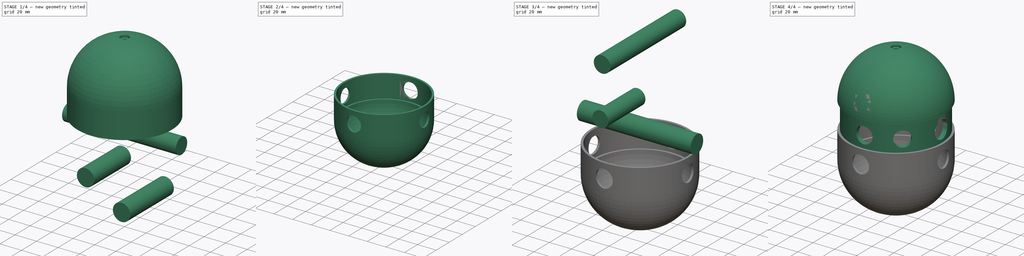
[diagram: build sequence overview — one tinted view per stage of 4, left to right]
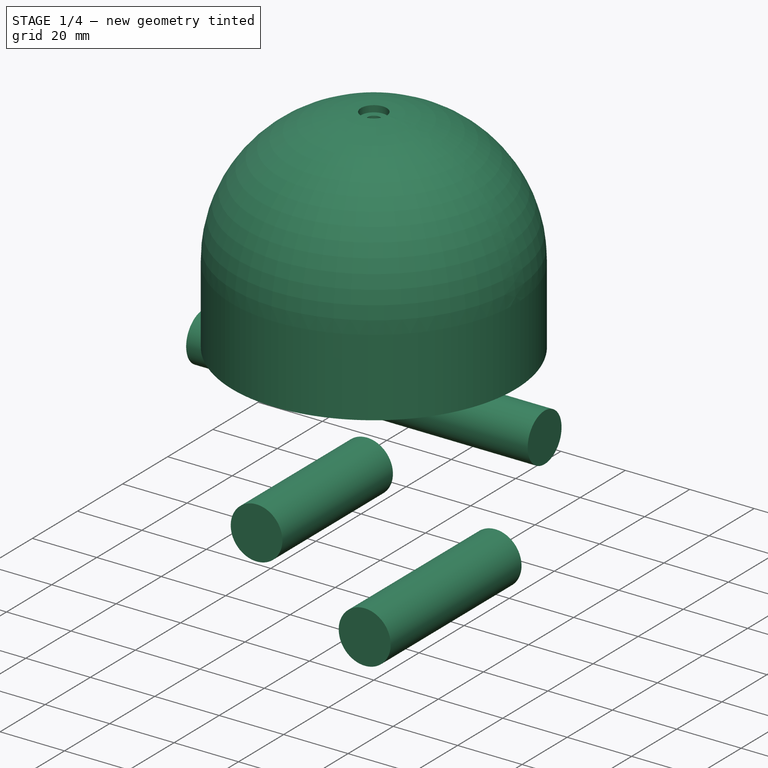
[diagram: stage 1 of 4 — iso view after this stage's code; geometry added in this stage tinted green]
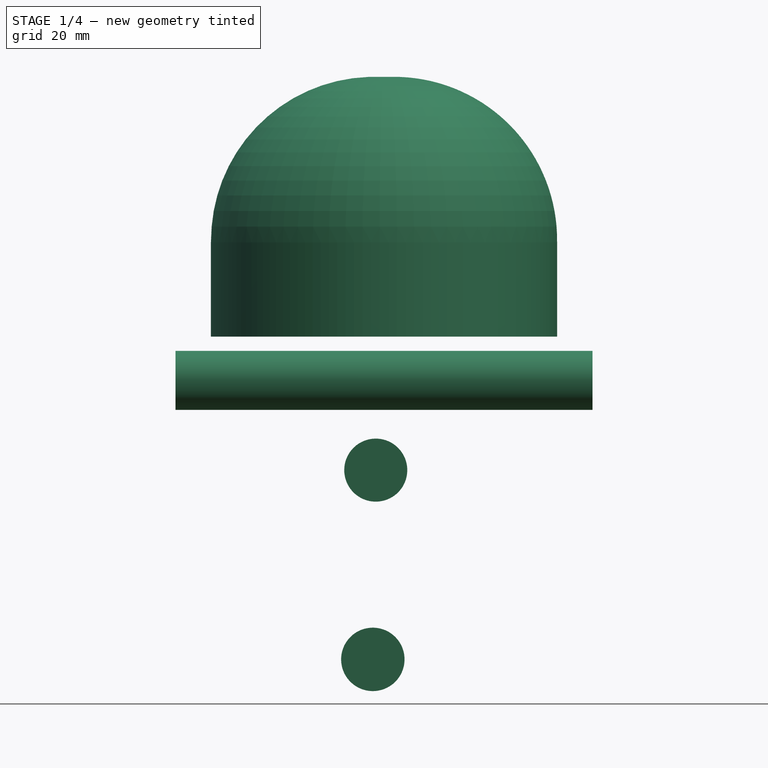
[diagram: stage 1 of 4 — front view after this stage's code; geometry added in this stage tinted green]
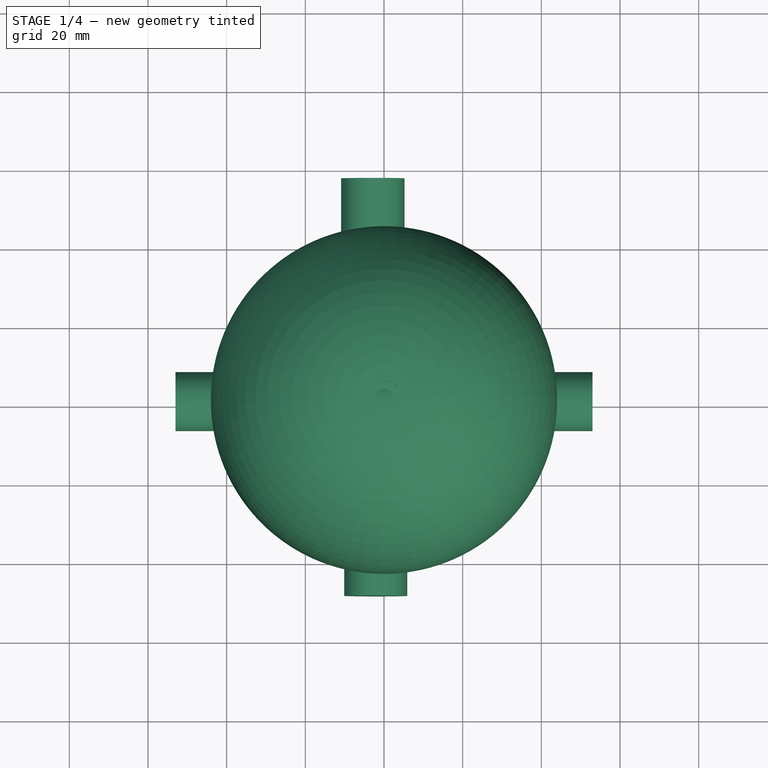
[diagram: stage 1 of 4 — top view after this stage's code; geometry added in this stage tinted green]
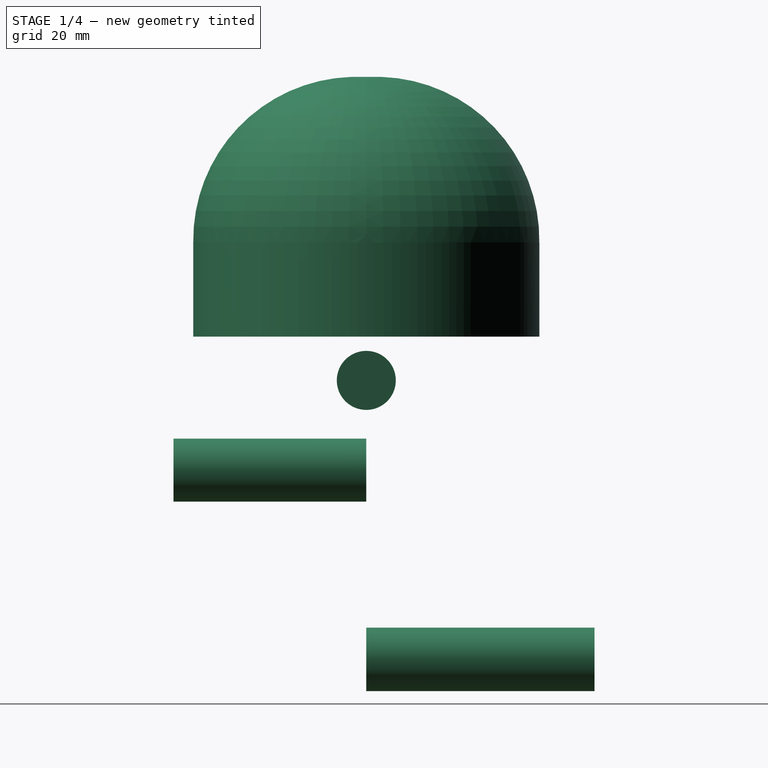
[diagram: stage 1 of 4 — right view after this stage's code; geometry added in this stage tinted green]
FCSTD DOCUMENT  (FreeCAD 0.19R)
Label: cat-toy
License: All rights reserved
LicenseURL: http://en.wikipedia.org/wiki/All_rights_reserved
objects: Sketcher::SketchObject×8, PartDesign::Body×8, PartDesign::Pad×6, Part::Cut×6, PartDesign::Revolution×2
note: 38 computed .brp shape members not serialized (recipe doc carries the construction recipe); baked Part::Feature solids carry a one-line shape summary decoded from their .brp

FEATURE [PartDesign::Body] Body  label="øvre"
  Group = -> [Sketch,Revolution]
  Origin = -> Origin
  Tip = -> Revolution
FEATURE [Sketcher::SketchObject] Sketch001
  FullyConstrained = false
  MapMode = 5
  Placement = pos=(0,0,0) rot=(1,0,0;1.5708rad)
  Support = -> [XZ_Plane001]
  sketch-geometry (11):
    g0: LineSegment StartX=44 StartY=-4 StartZ=0 EndX=42 EndY=-4 EndZ=0
    g1: LineSegment StartX=44 StartY=-4 StartZ=0 EndX=44 EndY=19.9438 EndZ=0
    g2: LineSegment StartX=44 StartY=-4 StartZ=0 EndX=42 EndY=-4 EndZ=0
    g3: LineSegment StartX=42 StartY=-4 StartZ=0 EndX=42 EndY=0 EndZ=0
    g4: ArcOfCircle CenterX=2.5 CenterY=20.5 CenterZ=0 NormalX=0 NormalY=0 NormalZ=1 AngleXU=0 Radius=37.5033 StartAngle=6.26985 EndAngle=7.86731
    g5: ArcOfCircle CenterX=2.53183 CenterY=20.5667 CenterZ=0 NormalX=0 NormalY=0 NormalZ=1 AngleXU=0 Radius=41.4729 StartAngle=6.26817 EndAngle=7.81857
    g6: LineSegment StartX=1.98646 StartY=60 StartZ=0 EndX=2 EndY=58 EndZ=0
    g7: LineSegment StartX=4 StartY=62.0136 StartZ=0 EndX=4 EndY=60 EndZ=0
    g8: LineSegment StartX=4 StartY=60 StartZ=0 EndX=1.98646 EndY=60 EndZ=0
    g9: LineSegment StartX=42 StartY=0 StartZ=0 EndX=42 EndY=20 EndZ=0
    g10: LineSegment StartX=42 StartY=20 StartZ=0 EndX=40 EndY=20 EndZ=0
  constraints (14):
    c: PointOnObject(g1,g0)
    c: Vertical(g1)
    c: Horizontal(g2)
    c: PointOnObject(g3,g-1)
    c: Coincident(g4,g6)
    c: Coincident(g2,g3)
    c: Coincident(g1,g2)
    c: Coincident(g1,g5)
    c: Coincident(g8,g6)
    c: Coincident(g7,g5)
    c: Coincident(g8,g7)
    c: Coincident(g10,g4)
    c: Coincident(g3,g9)
    c: Coincident(g9,g10)
FEATURE [PartDesign::Revolution] Revolution001
  Angle = 360
  Axis = (0,-2e-16,1)
  Base = (0,0,0)
  Placement = pos=(0,0,0) rot=(1,0,0;1.5708rad)
  Profile = -> Sketch001
  ReferenceAxis = -> Sketch001 [V_Axis]
  Reversed = true
FEATURE [PartDesign::Body] Body004
  Group = -> [Sketch004,Pad]
  Origin = -> Origin004
  Placement = pos=(0,0,-23) rot=(0,0,1;0rad)
  Tip = -> Pad
FEATURE [PartDesign::Pad] Pad001
  Direction = (1,1,1)
  Length = 106
  Length2 = 100
  Midplane = true
  Placement = pos=(0,0,0) rot=(0.57735,0.57735,0.57735;2.0944rad)
  Profile = -> Sketch005
  Type = 0
FEATURE [Sketcher::SketchObject] Sketch006
  FullyConstrained = false
  MapMode = 5
  Placement = pos=(0,0,0) rot=(1,0,0;1.5708rad)
  Support = -> [XZ_Plane006]
  sketch-geometry (1):
    g0: Circle CenterX=-2.0952 CenterY=-37.9497 CenterZ=0 NormalX=0 NormalY=0 NormalZ=1 AngleXU=0 Radius=8.01154
FEATURE [PartDesign::Pad] Pad002
  Direction = (1,1,1)
  Length = 49
  Length2 = 100
  Placement = pos=(0,0,0) rot=(1,0,0;1.5708rad)
  Profile = -> Sketch006
  Type = 0
FEATURE [Sketcher::SketchObject] Sketch009
  FullyConstrained = false
  MapMode = 5
  Placement = pos=(0,0,0) rot=(1,0,0;1.5708rad)
  Support = -> [XZ_Plane009]
  sketch-geometry (1):
    g0: Circle CenterX=-2.83997 CenterY=-86.0637 CenterZ=0 NormalX=0 NormalY=0 NormalZ=1 AngleXU=0 Radius=8.06002
FEATURE [PartDesign::Pad] Pad005
  Direction = (1,1,1)
  Length = 58
  Length2 = 100
  Placement = pos=(0,0,0) rot=(1,0,0;1.5708rad)
  Profile = -> Sketch009
  Reversed = true
  Type = 0
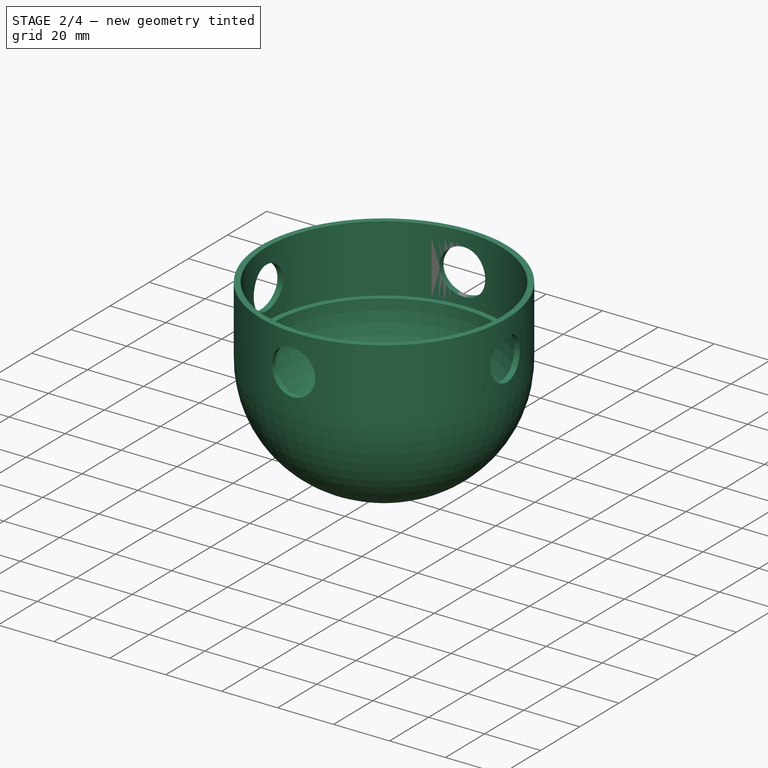
[diagram: stage 2 of 4 — iso view after this stage's code; geometry added in this stage tinted green]
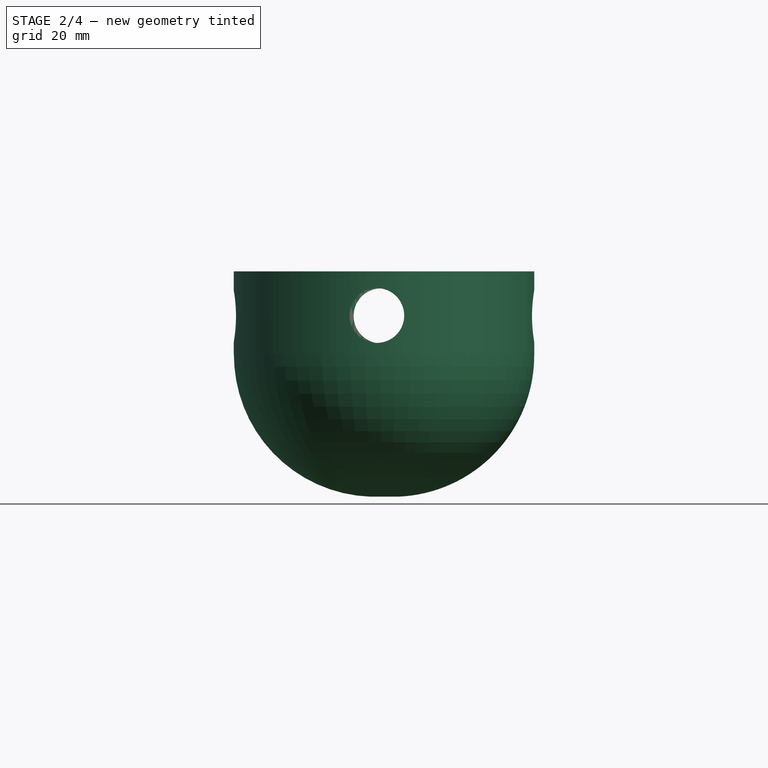
[diagram: stage 2 of 4 — front view after this stage's code; geometry added in this stage tinted green]
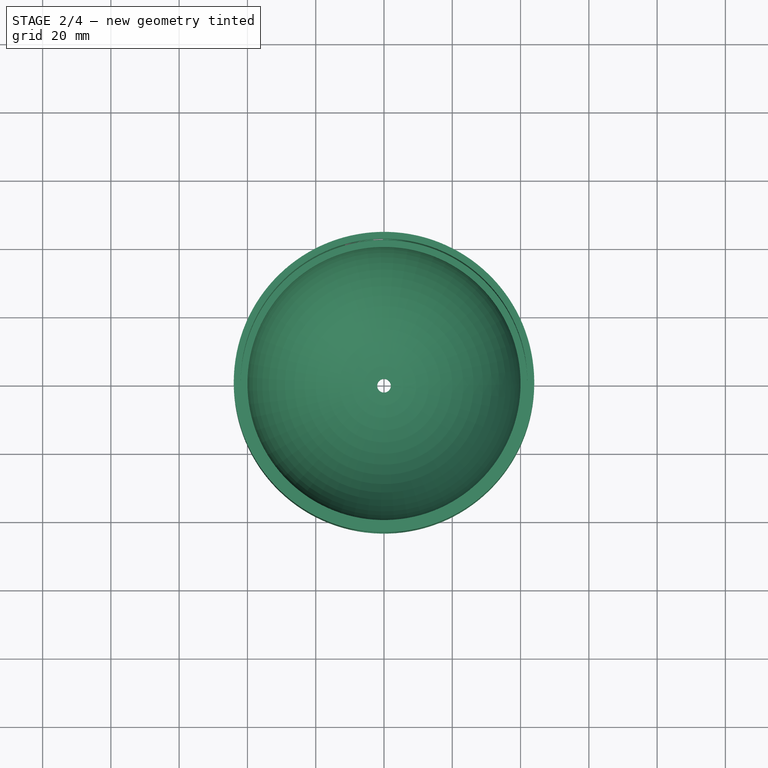
[diagram: stage 2 of 4 — top view after this stage's code; geometry added in this stage tinted green]
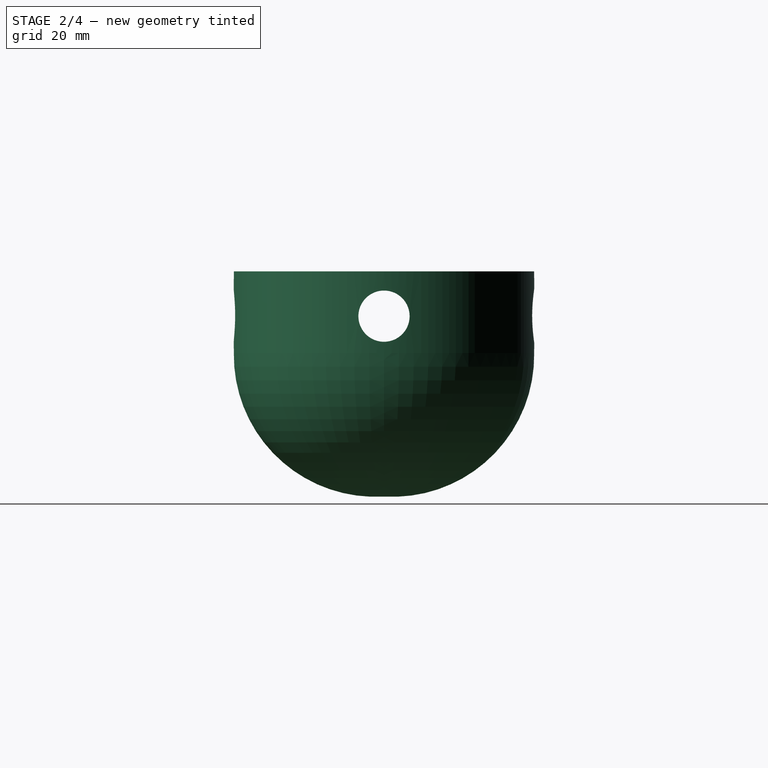
[diagram: stage 2 of 4 — right view after this stage's code; geometry added in this stage tinted green]
FEATURE [Part::Cut] Cut001
  Base = -> Body001
  Placement = pos=(0,0,-24) rot=(0,0,1;0rad)
  Tool = -> Body005
FEATURE [Part::Cut] Cut003
  Base = -> Cut001
  Placement = pos=(0,0,-25) rot=(0,0,1;0rad)
  Tool = -> Body006
FEATURE [PartDesign::Body] Body009
  Group = -> [Sketch009,Pad005]
  Origin = -> Origin009
  Placement = pos=(2,0,0) rot=(0,0,1;0rad)
  Tip = -> Pad005
FEATURE [Part::Cut] Cut005
  Base = -> Cut003
  Tool = -> Body009
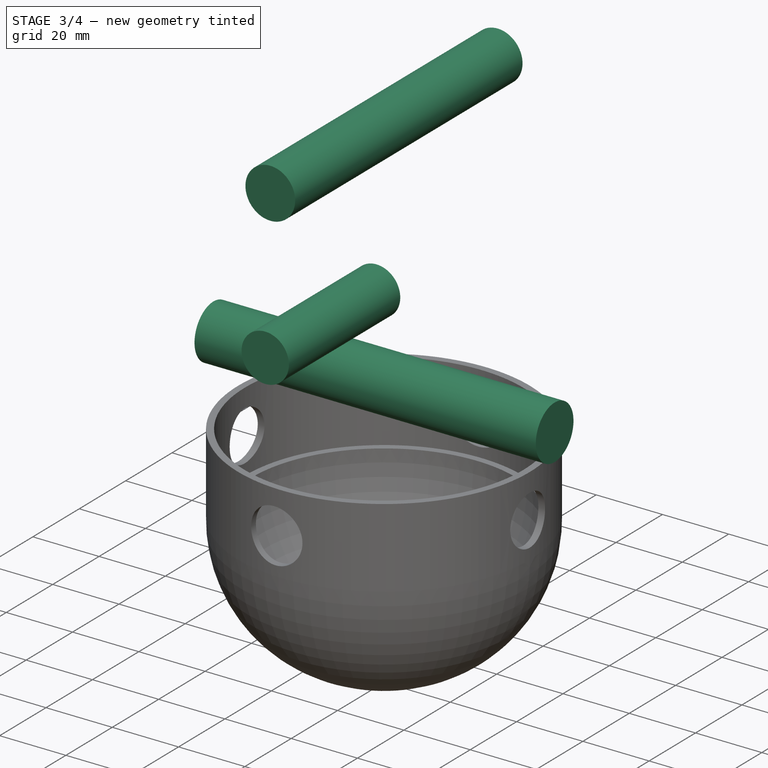
[diagram: stage 3 of 4 — iso view after this stage's code; geometry added in this stage tinted green]
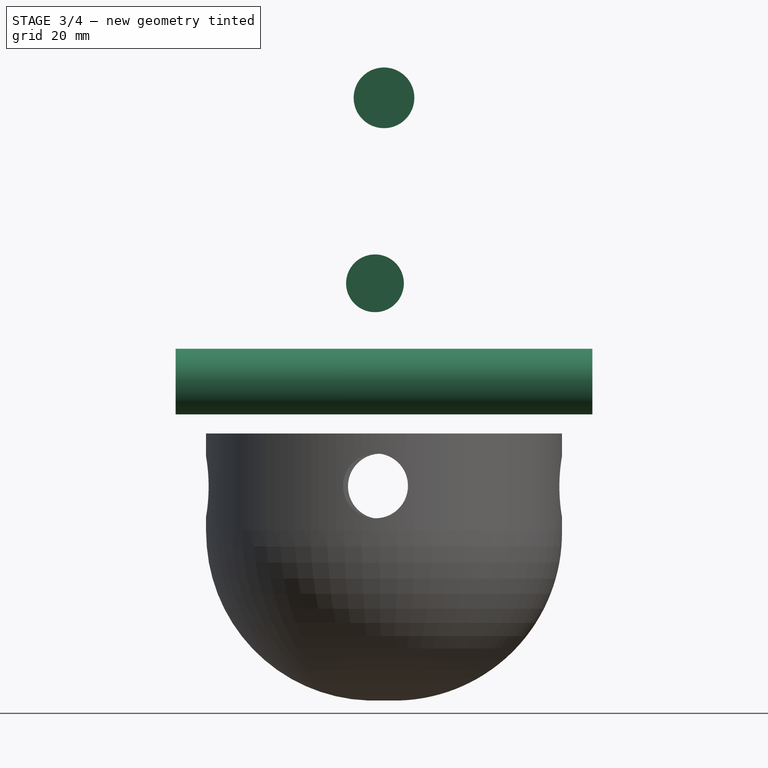
[diagram: stage 3 of 4 — front view after this stage's code; geometry added in this stage tinted green]
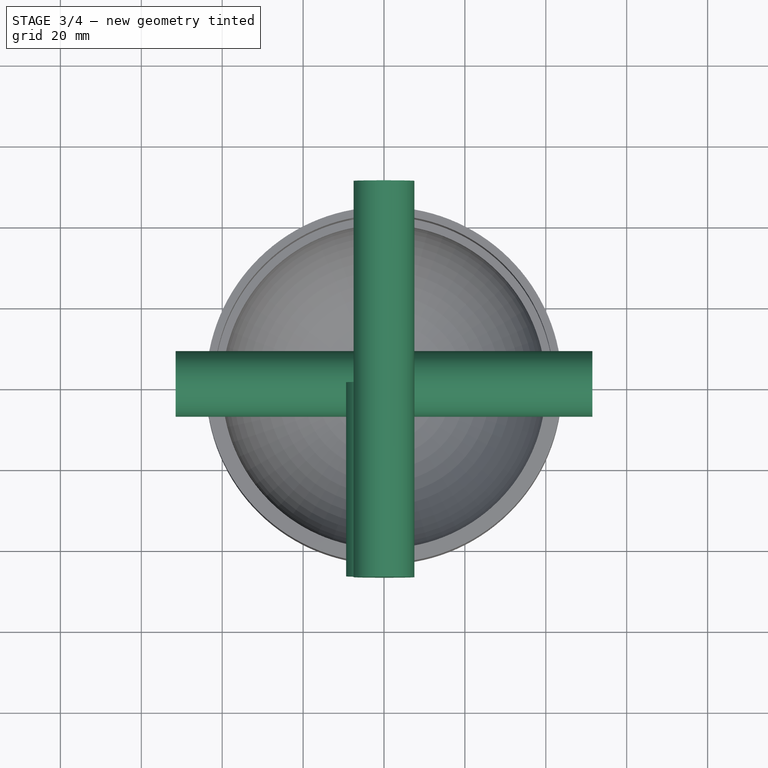
[diagram: stage 3 of 4 — top view after this stage's code; geometry added in this stage tinted green]
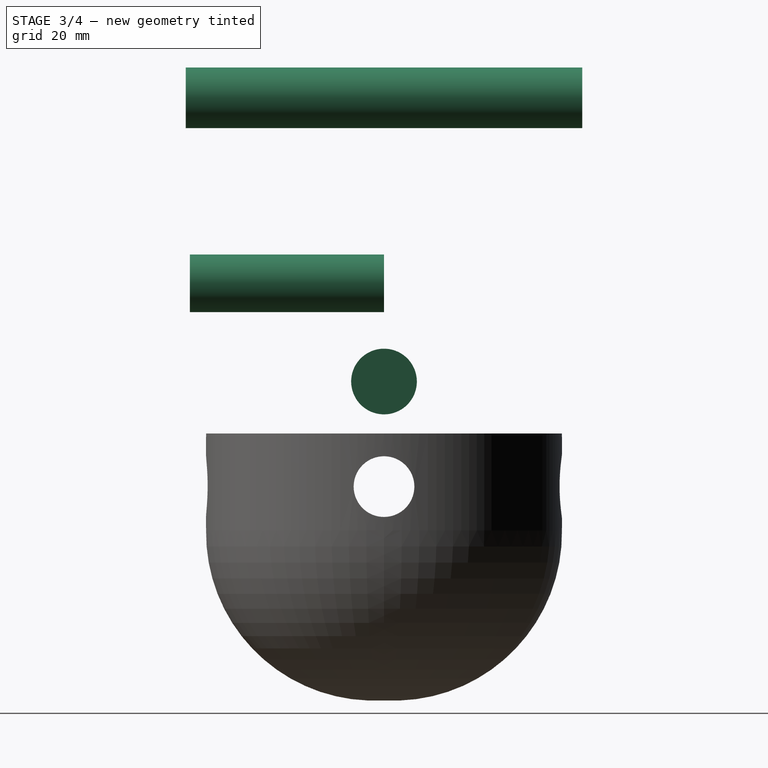
[diagram: stage 3 of 4 — right view after this stage's code; geometry added in this stage tinted green]
FEATURE [PartDesign::Body] Body001  label="nedre"
  Group = -> [Sketch001,Revolution001]
  Origin = -> Origin001
  Placement = pos=(0,0,-28) rot=(1,0,0;3.14159rad)
  Tip = -> Revolution001
FEATURE [Sketcher::SketchObject] Sketch004
  FullyConstrained = false
  MapMode = 5
  Placement = pos=(0,0,0) rot=(1,0,0;1.5708rad)
  Support = -> [XZ_Plane004]
  sketch-geometry (1):
    g0: Circle CenterX=0 CenterY=9.97126 CenterZ=0 NormalX=0 NormalY=0 NormalZ=1 AngleXU=0 Radius=7.5
  constraints (2):
    c: PointOnObject(g0,g-2)
    c: Diameter(g0) = 15
FEATURE [Sketcher::SketchObject] Sketch005
  FullyConstrained = false
  MapMode = 5
  Placement = pos=(0,0,0) rot=(0.57735,0.57735,0.57735;2.0944rad)
  Support = -> [YZ_Plane005]
  sketch-geometry (1):
    g0: Circle CenterX=0 CenterY=-15.1385 CenterZ=0 NormalX=0 NormalY=0 NormalZ=1 AngleXU=0 Radius=7.5
  constraints (2):
    c: PointOnObject(g0,g-2)
    c: Diameter(g0) = 15
FEATURE [PartDesign::Pad] Pad
  Direction = (1,1,1)
  Length = 98
  Length2 = 100
  Midplane = true
  Placement = pos=(0,0,0) rot=(1,0,0;1.5708rad)
  Profile = -> Sketch004
  Type = 0
FEATURE [PartDesign::Body] Body006
  Group = -> [Sketch006,Pad002]
  Origin = -> Origin006
  Placement = pos=(0,0,-23) rot=(0,0,1;0rad)
  Tip = -> Pad002
FEATURE [Sketcher::SketchObject] Sketch007
  FullyConstrained = false
  MapMode = 5
  Placement = pos=(0,0,0) rot=(1,0,0;1.5708rad)
  Support = -> [XZ_Plane007]
  sketch-geometry (1):
    g0: Circle CenterX=-2.23273 CenterY=-35.8796 CenterZ=0 NormalX=0 NormalY=0 NormalZ=1 AngleXU=0 Radius=7.1376
FEATURE [PartDesign::Pad] Pad003
  Direction = (1,1,1)
  Length = 48
  Length2 = 100
  Placement = pos=(0,0,0) rot=(1,0,0;1.5708rad)
  Profile = -> Sketch007
  Type = 0
FEATURE [Sketcher::SketchObject] Sketch008
  FullyConstrained = false
  MapMode = 5
  Placement = pos=(0,0,0) rot=(0.57735,0.57735,0.57735;2.0944rad)
  Support = -> [YZ_Plane008]
  sketch-geometry (1):
    g0: Circle CenterX=0 CenterY=-60.1611 CenterZ=0 NormalX=0 NormalY=0 NormalZ=1 AngleXU=0 Radius=8.11827
  constraints (1):
    c: PointOnObject(g0,g-2)
FEATURE [PartDesign::Pad] Pad004
  Direction = (1,1,1)
  Length = 103
  Length2 = 100
  Midplane = true
  Placement = pos=(0,0,0) rot=(0.57735,0.57735,0.57735;2.0944rad)
  Profile = -> Sketch008
  Type = 0
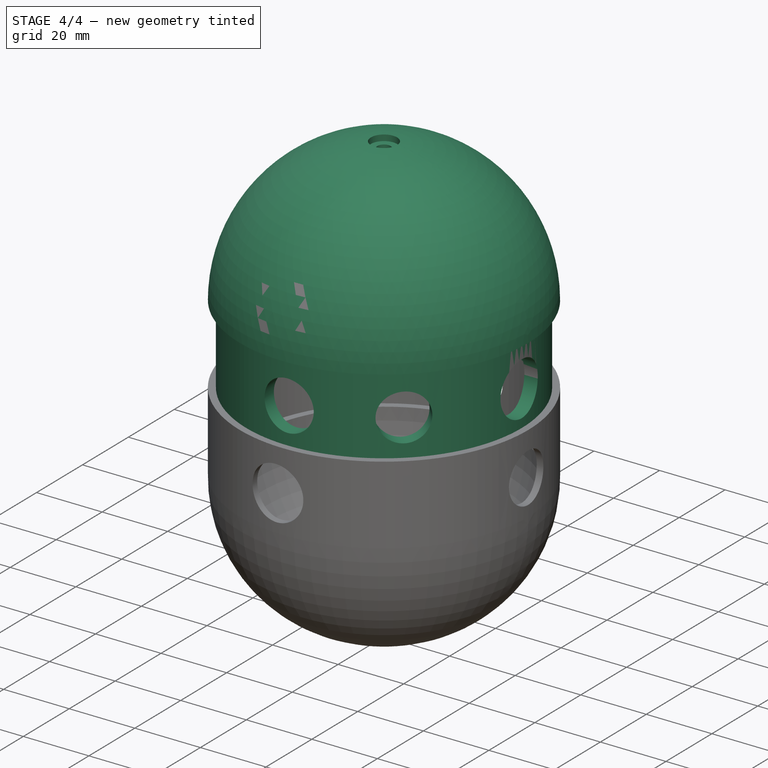
[diagram: stage 4 of 4 — iso view after this stage's code; geometry added in this stage tinted green]
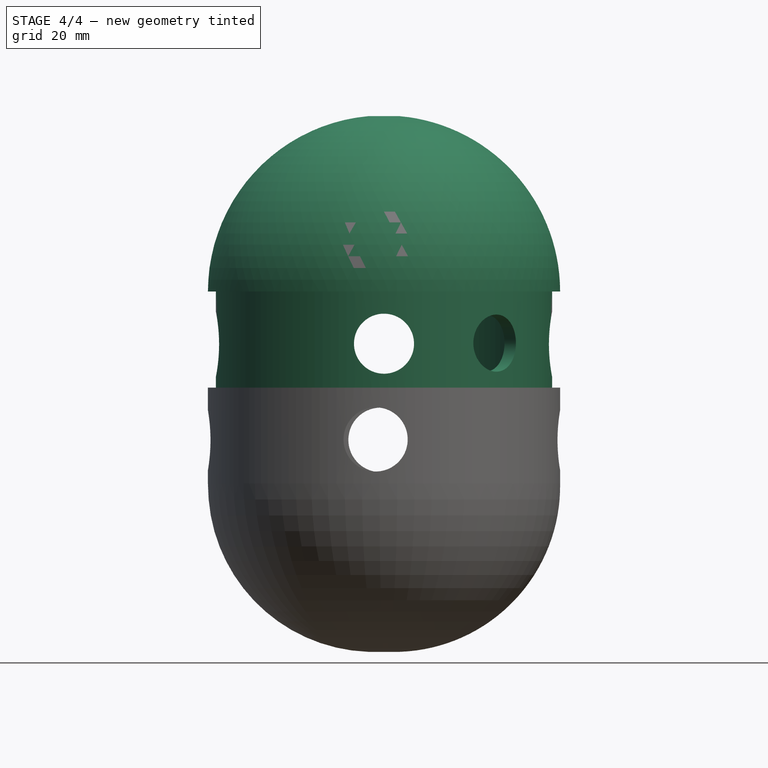
[diagram: stage 4 of 4 — front view after this stage's code; geometry added in this stage tinted green]
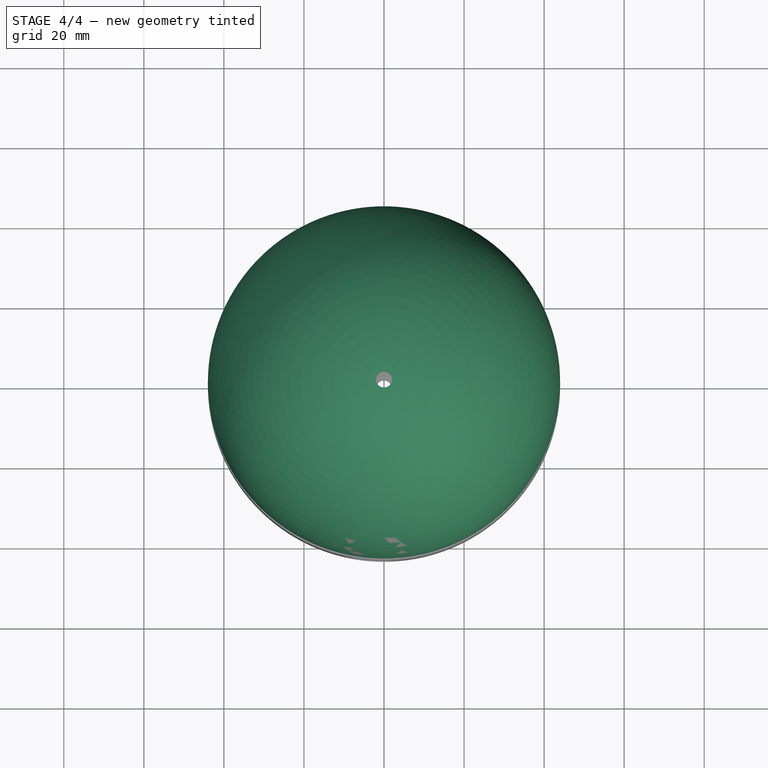
[diagram: stage 4 of 4 — top view after this stage's code; geometry added in this stage tinted green]
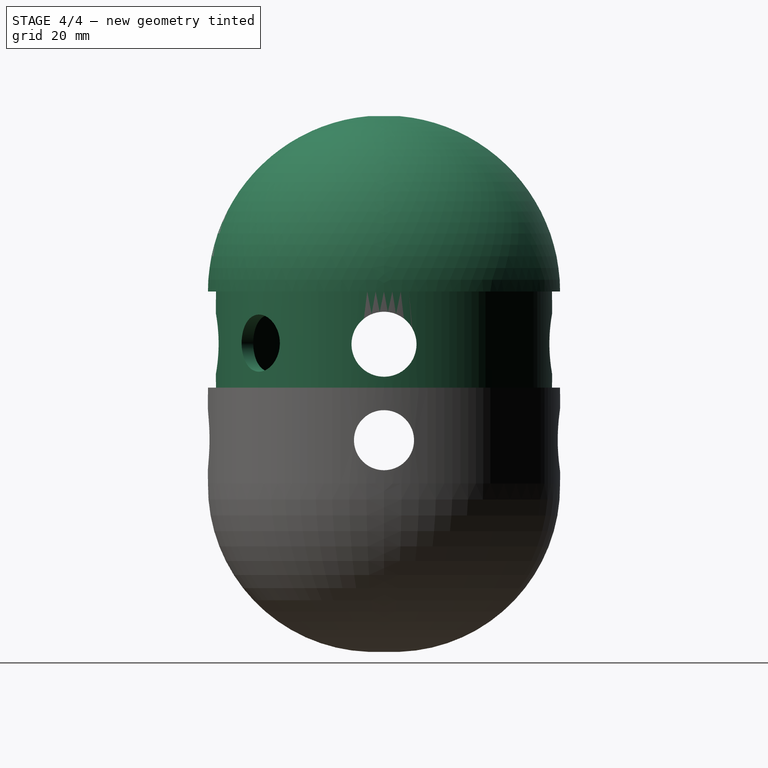
[diagram: stage 4 of 4 — right view after this stage's code; geometry added in this stage tinted green]
FEATURE [Sketcher::SketchObject] Sketch
  FullyConstrained = false
  MapMode = 5
  Placement = pos=(0,0,0) rot=(1,0,0;1.5708rad)
  Support = -> [XZ_Plane]
  sketch-geometry (10):
    g0: ArcOfCircle CenterX=0 CenterY=0 CenterZ=0 NormalX=0 NormalY=0 NormalZ=1 AngleXU=0 Radius=40.05 StartAngle=0.321335 EndAngle=1.52084
    g1: ArcOfCircle CenterX=0 CenterY=0 CenterZ=0 NormalX=0 NormalY=0 NormalZ=1 AngleXU=0 Radius=44 StartAngle=0 EndAngle=1.47976
    g2: LineSegment StartX=44 StartY=0 StartZ=0 EndX=42 EndY=0 EndZ=0
    g3: LineSegment StartX=2 StartY=42 StartZ=0 EndX=2 EndY=40 EndZ=0
    g4: LineSegment StartX=2 StartY=42 StartZ=0 EndX=4 EndY=42 EndZ=0
    g5: LineSegment StartX=4 StartY=43.8178 StartZ=0 EndX=4 EndY=42 EndZ=0
    g6: LineSegment StartX=34 StartY=0 StartZ=0 EndX=34 EndY=-24 EndZ=0
    g7: LineSegment StartX=42 StartY=-24 StartZ=0 EndX=38 EndY=-24 EndZ=0
    g8: LineSegment StartX=38 StartY=-24 StartZ=0 EndX=38 EndY=12.6491 EndZ=0
    g9: LineSegment StartX=42 StartY=-24 StartZ=0 EndX=42 EndY=0 EndZ=0
  constraints (10):
    c: Coincident(g0,g-1)
    c: Coincident(g1,g0)
    c: PointOnObject(g1,g-1)
    c: Coincident(g2,g1)
    c: Coincident(g3,g0)
    c: Vertical(g3)
    c: Coincident(g4,g3)
    c: Coincident(g5,g1)
    c: Coincident(g5,g4)
    c: Coincident(g8,g0)
FEATURE [PartDesign::Revolution] Revolution
  Angle = 360
  Axis = (0,-2e-16,1)
  Base = (0,0,0)
  Placement = pos=(0,0,0) rot=(1,0,0;1.5708rad)
  Profile = -> Sketch
  ReferenceAxis = -> Sketch [V_Axis]
  Reversed = true
FEATURE [PartDesign::Body] Body005
  Group = -> [Sketch005,Pad001]
  Origin = -> Origin005
  Placement = pos=(0,0,-22) rot=(0,0,1;0rad)
  Tip = -> Pad001
FEATURE [Part::Cut] Cut
  Base = -> Body
  Placement = pos=(0,0,-24) rot=(0,0,-1;0.785398rad)
  Tool = -> Body004
FEATURE [PartDesign::Body] Body007
  Group = -> [Sketch007,Pad003]
  Origin = -> Origin007
  Placement = pos=(0,0,-1) rot=(0,0,1;0rad)
  Tip = -> Pad003
FEATURE [Part::Cut] Cut002
  Base = -> Cut
  Placement = pos=(0,0,-25) rot=(0,0,1;0.785398rad)
  Tool = -> Body007
FEATURE [PartDesign::Body] Body008
  Group = -> [Sketch008,Pad004]
  Origin = -> Origin008
  Placement = pos=(0,0,-2) rot=(0,0,1;0rad)
  Tip = -> Pad004
FEATURE [Part::Cut] Cut004
  Base = -> Cut002
  Tool = -> Body008
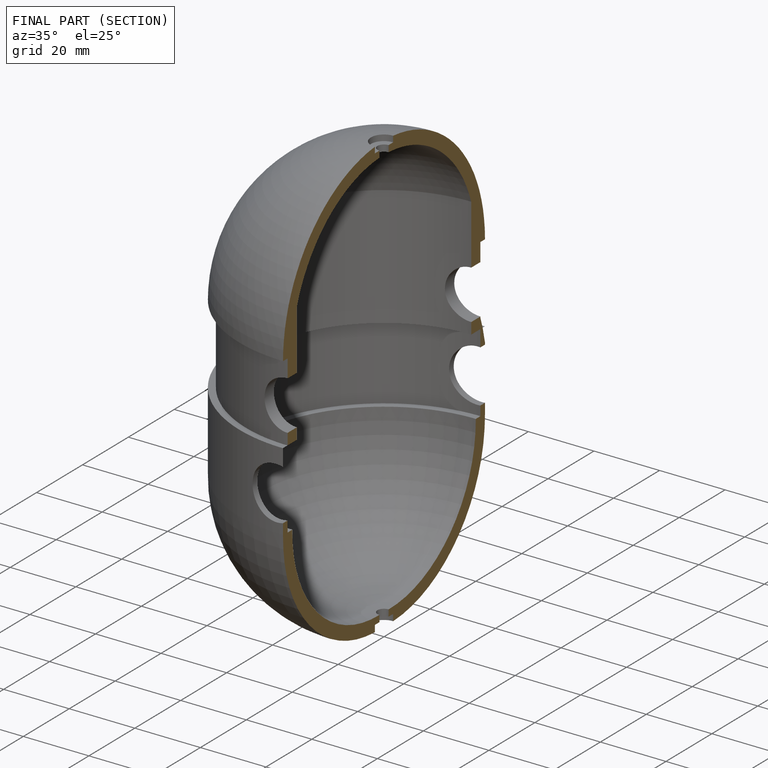
[diagram: finished part — half-section view (interior)]
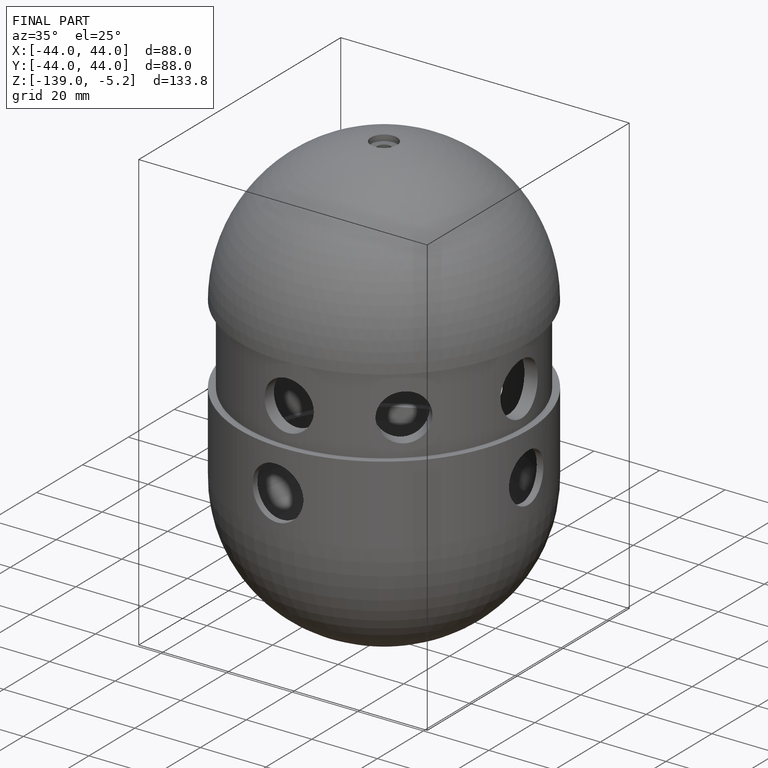
[diagram: finished part — iso view with bounding-box wireframe]
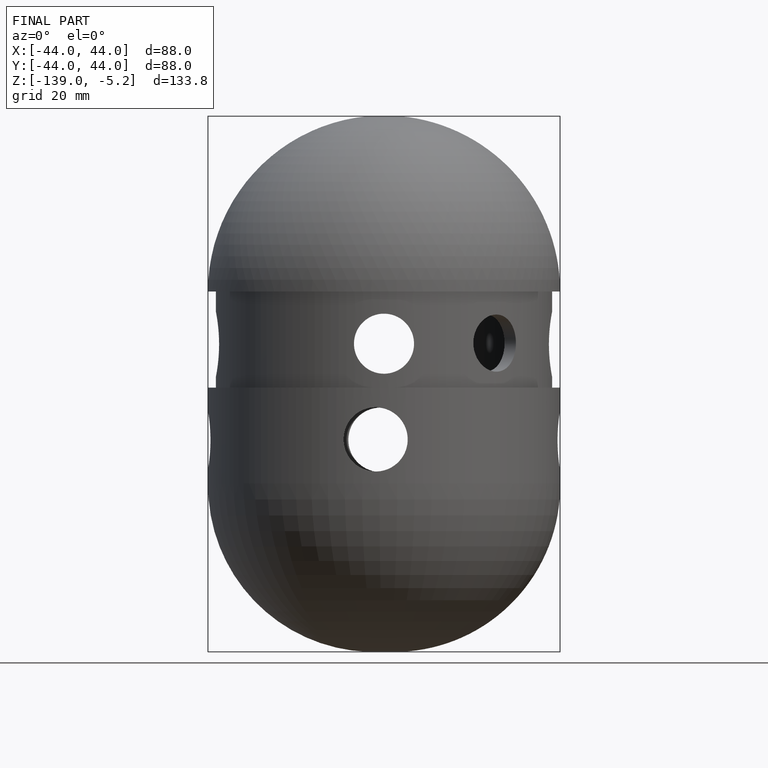
[diagram: finished part — front view with bounding-box wireframe]
